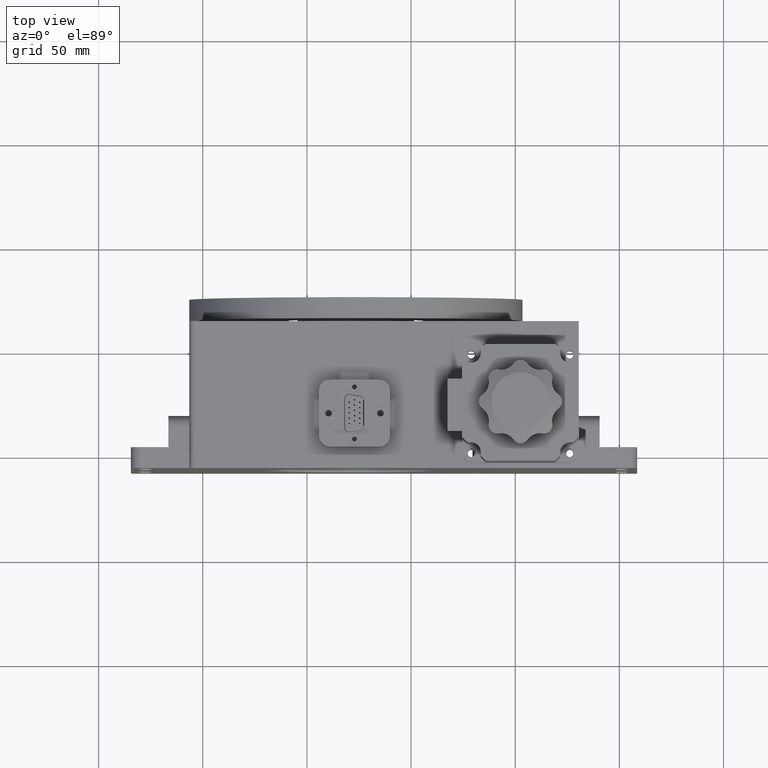
[diagram: clean part render]
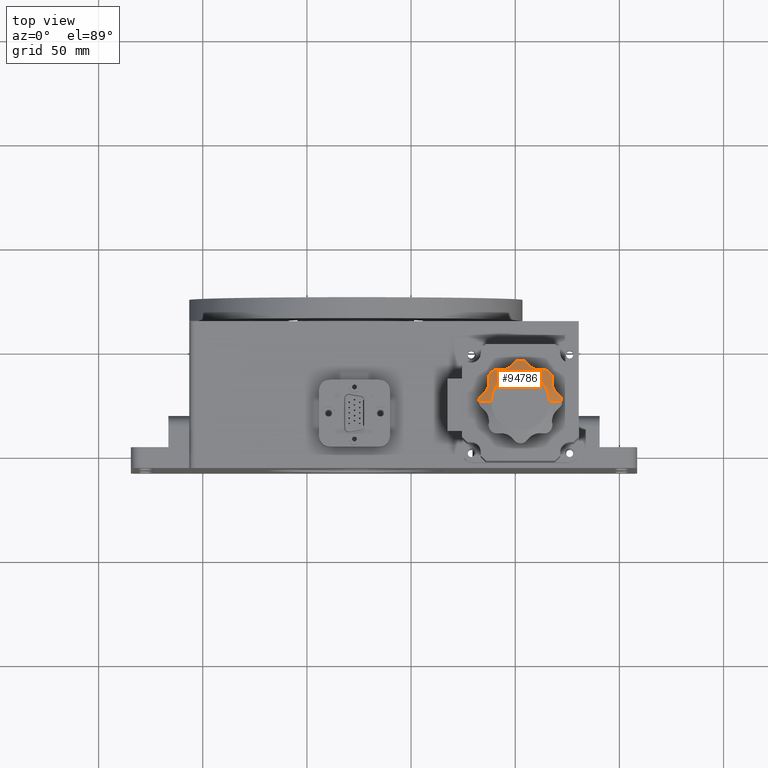
[diagram: same view with one face highlighted and labeled with its STEP entity id]
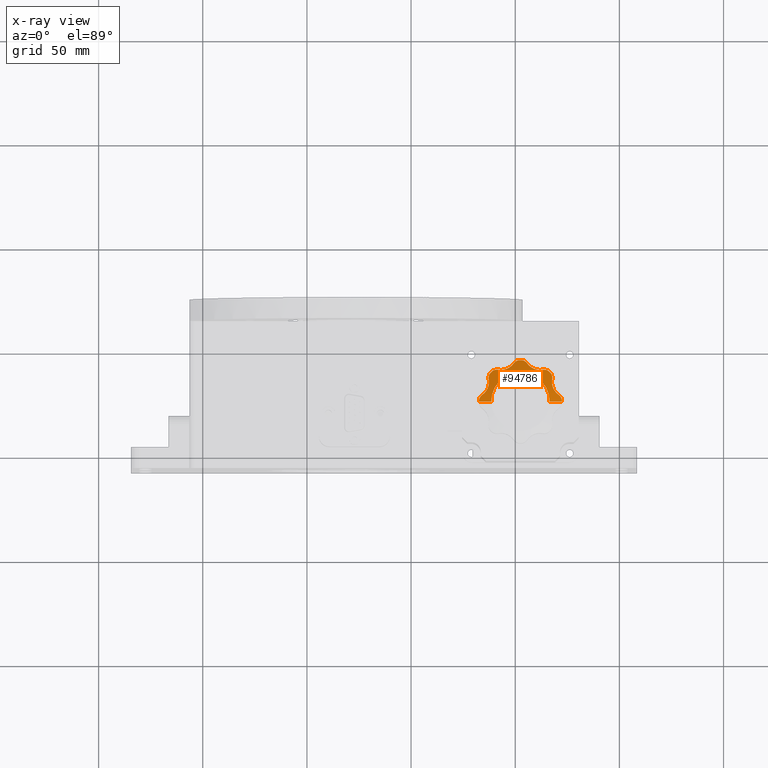
[diagram: x-ray of the same camera — body ghosted, the highlighted face saturated]
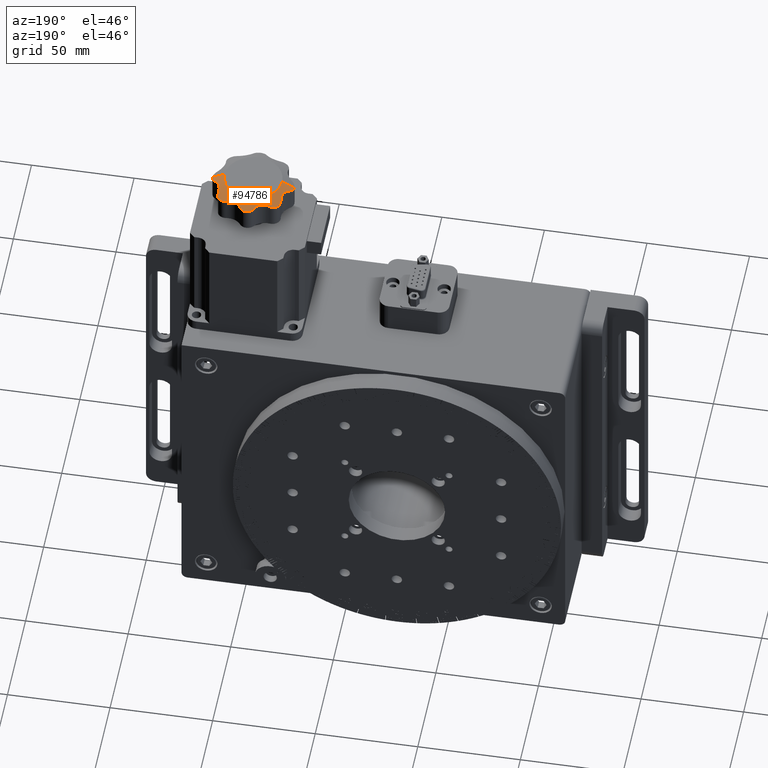
[diagram: same view with one face highlighted and labeled with its STEP entity id]
A machine part, top view. The second image highlights one B-rep face of the part: STEP entity #94786.
The next image is the same camera in x-ray: the body ghosted, the highlighted face saturated — about 0% of this face is hidden behind the body in this view.
A second angle (auxiliary view) of the same face is appended — the face is thin or edge-on in the first view.
In plain terms, the highlighted conical surface has half-angle 63 deg.
Its self-contained STEP definition (entity closure, byte-faithful):
#40 = EDGE_CURVE ( 'NONE', #5921, #12905, #22872, .T. ) ;
#714 = CARTESIAN_POINT ( 'NONE',  ( 244.2895339026112000, 38.22019407640754500, 158.1234121039777600 ) ) ;
#976 = EDGE_CURVE ( 'NONE', #85817, #81004, #88859, .T. ) ;
#1226 = LINE ( 'NONE', #74512, #20495 ) ;
#2388 = CARTESIAN_POINT ( 'NONE',  ( 262.4532974490604700, 38.13607644208972400, 157.7063472167102700 ) ) ;
#2733 = CARTESIAN_POINT ( 'NONE',  ( 256.6521355745475100, 40.25110680748105800, 157.8936131362179100 ) ) ;
#3042 = EDGE_CURVE ( 'NONE', #102464, #70332, #33786, .T. ) ;
#3214 = DIRECTION ( 'NONE',  ( -1.163031447553725900E-017, -1.979074067922844300E-017, -1.000000000000000000 ) ) ;
#3299 = CARTESIAN_POINT ( 'NONE',  ( 267.8353190381724900, 34.52552917857944000, 157.1610722483295300 ) ) ;
#3445 = EDGE_LOOP ( 'NONE', ( #23506, #17293, #21090, #42168, #74228, #86904, #52827, #32618, #105935, #5243, #28139, #44006, #78023, #72346, #22389, #43149, #6727, #10941, #90862, #21762, #10552, #42713 ) ) ;
#3989 = CARTESIAN_POINT ( 'NONE',  ( 272.2155535825086200, 24.49970920865667900, 156.8593759186635200 ) ) ;
#4061 = CARTESIAN_POINT ( 'NONE',  ( 236.4915562920233200, 28.85943980494048600, 158.2479042270338100 ) ) ;
#4962 = CARTESIAN_POINT ( 'NONE',  ( 267.9254955901665200, 30.28906229173460900, 158.2416332507994800 ) ) ;
#5053 = CIRCLE ( 'NONE', #29859, 19.88783151651546500 ) ;
#5243 = ORIENTED_EDGE ( 'NONE', *, *, #104392, .T. ) ;
#5921 = VERTEX_POINT ( 'NONE', #51972 ) ;
#5932 = CARTESIAN_POINT ( 'NONE',  ( 264.7138090749869000, 38.21806130307884100, 156.9914101614186300 ) ) ;
#6667 = EDGE_CURVE ( 'NONE', #12905, #97980, #33289, .T. ) ;
#6727 = ORIENTED_EDGE ( 'NONE', *, *, #61678, .T. ) ;
#6898 = CARTESIAN_POINT ( 'NONE',  ( 239.1980096866399800, 37.78454923670585000, 156.8000000000000100 ) ) ;
#7636 = CARTESIAN_POINT ( 'NONE',  ( 237.2066009731744000, 33.84962121827257400, 157.3795775005561900 ) ) ;
#7739 = EDGE_CURVE ( 'NONE', #15286, #102464, #39404, .T. ) ;
#8136 = EDGE_CURVE ( 'NONE', #98801, #48284, #99939, .T. ) ;
#8196 = CARTESIAN_POINT ( 'NONE',  ( 250.3756728672116800, 42.39726155890811300, 156.9914101639428700 ) ) ;
#8627 = B_SPLINE_CURVE_WITH_KNOTS ( 'NONE', 3,
 ( #29676, #96295, #104589, #55234, #5932, #63556, #14178, #71799, #22500, #80095 ),
 .UNSPECIFIED., .F., .F.,
 ( 4, 2, 2, 2, 4 ),
 ( 1.845941825669782200E-006, 0.0007127976189506407800, 0.001423749296075611900, 0.002134700973200582800, 0.002845652650325554000 ),
 .UNSPECIFIED. ) ;
#8871 = EDGE_CURVE ( 'NONE', #15286, #60846, #20980, .T. ) ;
#8956 = CARTESIAN_POINT ( 'NONE',  ( 243.2376291435348600, 38.13437783158880000, 157.8936132756212500 ) ) ;
#9814 = AXIS2_PLACEMENT_3D ( 'NONE', #81852, #32481, #90139 ) ;
#10120 = DIRECTION ( 'NONE',  ( 1.163031447553725900E-017, 1.979074067922844300E-017, 1.000000000000000000 ) ) ;
#10455 = CARTESIAN_POINT ( 'NONE',  ( 267.6419160565790200, 32.34121878844457100, 157.8681554785693800 ) ) ;
#10552 = ORIENTED_EDGE ( 'NONE', *, *, #6667, .T. ) ;
#10605 = CARTESIAN_POINT ( 'NONE',  ( 237.2742689622841100, 35.16590967332485500, 157.0033968980166900 ) ) ;
#10613 = CARTESIAN_POINT ( 'NONE',  ( 260.7157047989858300, 38.21937809799154500, 158.1225106314465400 ) ) ;
#10941 = ORIENTED_EDGE ( 'NONE', *, *, #976, .T. ) ;
#10962 = CARTESIAN_POINT ( 'NONE',  ( 255.9698768873821600, 41.01875098533089700, 157.5844689233043100 ) ) ;
#11558 = CARTESIAN_POINT ( 'NONE',  ( 267.8318424052072300, 34.06864707441517500, 157.2997279871319700 ) ) ;
#11949 = CARTESIAN_POINT ( 'NONE',  ( 237.3639235579104500, 32.95329744906084100, 157.7063472167102700 ) ) ;
#12249 = CARTESIAN_POINT ( 'NONE',  ( 272.3601825759157600, 24.04832746820617100, 156.8000000000000100 ) ) ;
#12305 = CARTESIAN_POINT ( 'NONE',  ( 236.1338441644809600, 28.24613468142378600, 158.1782248456928800 ) ) ;
#12877 = CARTESIAN_POINT ( 'NONE',  ( 270.7968704026918700, 26.27481088816412900, 157.4624876279491400 ) ) ;
#12905 = VERTEX_POINT ( 'NONE', #40096 ) ;
#13225 = CARTESIAN_POINT ( 'NONE',  ( 267.7302792191276200, 31.16214534001813200, 158.1301160192735400 ) ) ;
#14178 = CARTESIAN_POINT ( 'NONE',  ( 264.0266556550420800, 38.31449387680400800, 157.1674099899104500 ) ) ;
#14373 = AXIS2_PLACEMENT_3D ( 'NONE', #19429, #71877, #96739 ) ;
#15286 = VERTEX_POINT ( 'NONE', #71093 ) ;
#15306 = CARTESIAN_POINT ( 'NONE',  ( 255.1939272746092200, 41.99348869398897200, 157.1610719225173200 ) ) ;
#16456 = CARTESIAN_POINT ( 'NONE',  ( 249.8215938939477800, 41.97955883692399900, 157.1674099949589400 ) ) ;
#16858 = CARTESIAN_POINT ( 'NONE',  ( 247.5476549759786200, 39.57110591280401500, 158.1225106727056300 ) ) ;
#17222 = CARTESIAN_POINT ( 'NONE',  ( 242.2123927498955400, 38.19475443748550700, 157.5844690265438100 ) ) ;
#17293 = ORIENTED_EDGE ( 'NONE', *, *, #7739, .T. ) ;
#18831 = VERTEX_POINT ( 'NONE', #46037 ) ;
#18854 = EDGE_CURVE ( 'NONE', #48284, #26386, #49368, .T. ) ;
#18913 = CARTESIAN_POINT ( 'NONE',  ( 237.1969899873211600, 34.65284822802367200, 157.1331138828683700 ) ) ;
#18917 = CARTESIAN_POINT ( 'NONE',  ( 259.6807303797406800, 38.45506756187333500, 158.2519293113118700 ) ) ;
#19429 = CARTESIAN_POINT ( 'NONE',  ( 252.4999999999999400, 22.99999999999997900, 156.8000000000000100 ) ) ;
#19836 = CARTESIAN_POINT ( 'NONE',  ( 267.6782867069438200, 35.44651678098868100, 156.9340889378584300 ) ) ;
#20495 = VECTOR ( 'NONE', #83171, 1000.000000000000100 ) ;
#20496 = CARTESIAN_POINT ( 'NONE',  ( 272.0159357040424800, 24.92163010490064700, 156.9420244716242200 ) ) ;
#20568 = CARTESIAN_POINT ( 'NONE',  ( 235.4879669397834300, 27.40749196638294500, 157.9806272532480600 ) ) ;
#20980 = CIRCLE ( 'NONE', #61671, 13.99999999999998400 ) ;
#21090 = ORIENTED_EDGE ( 'NONE', *, *, #3042, .T. ) ;
#21508 = CARTESIAN_POINT ( 'NONE',  ( 267.6419160565790200, 32.04980657354980200, 157.9461143652519000 ) ) ;
#21580 = CARTESIAN_POINT ( 'NONE',  ( 237.1862915010153800, 34.31370849898491600, 157.2321513908461800 ) ) ;
#21762 = ORIENTED_EDGE ( 'NONE', *, *, #40, .T. ) ;
#21814 = AXIS2_PLACEMENT_3D ( 'NONE', #46388, #103979, #54624 ) ;
#22389 = ORIENTED_EDGE ( 'NONE', *, *, #76869, .T. ) ;
#22500 = CARTESIAN_POINT ( 'NONE',  ( 263.3449571646624500, 38.29258039298554200, 157.3812778587599400 ) ) ;
#22872 = B_SPLINE_CURVE_WITH_KNOTS ( 'NONE', 3,
 ( #26368, #53624, #54700, #44676, #76710, #87531 ),
 .UNSPECIFIED., .F., .F.,
 ( 4, 2, 4 ),
 ( 2.561101794015369700E-007, 0.001425904833248824900, 0.002851553556318248100 ),
 .UNSPECIFIED. ) ;
#23506 = ORIENTED_EDGE ( 'NONE', *, *, #8871, .F. ) ;
#23647 = CARTESIAN_POINT ( 'NONE',  ( 267.6419160565790200, 32.77534877471966700, 157.7520165911938600 ) ) ;
#23658 = CARTESIAN_POINT ( 'NONE',  ( 254.0111105713556000, 42.73450244827623100, 156.8515187176439600 ) ) ;
#24001 = CARTESIAN_POINT ( 'NONE',  ( 267.6419160565790200, 32.34121878844457100, 157.8681554785693800 ) ) ;
#24265 = B_SPLINE_CURVE_WITH_KNOTS ( 'NONE', 3,
 ( #69578, #11949, #28505, #86153, #36801, #94415, #45096, #102671, #53343, #4061, #61617, #12305, #69923, #20568, #78201, #28843, #86530, #37149 ),
 .UNSPECIFIED., .F., .F.,
 ( 4, 2, 2, 2, 2, 2, 2, 2, 4 ),
 ( 2.131679597206393300E-007, 0.002139037759767641000, 0.003208450055671597000, 0.004277862351575552900, 0.004812568499527515400, 0.005347274647479477100, 0.006416686943383443900, 0.007486099239287411500, 0.008555511535191379100 ),
 .UNSPECIFIED. ) ;
#24721 = B_SPLINE_CURVE_WITH_KNOTS ( 'NONE', 3,
 ( #12249, #101541, #3989, #20496, #78139, #28781, #86464, #37089, #94707, #45386 ),
 .UNSPECIFIED., .F., .F.,
 ( 4, 2, 2, 2, 4 ),
 ( 1.845941825692407700E-006, 0.0007127976259201239300, 0.001423749310014555500, 0.002134700994108986800, 0.002845652678203418500 ),
 .UNSPECIFIED. ) ;
#24806 = CARTESIAN_POINT ( 'NONE',  ( 249.3550554229111600, 41.48203000465142800, 157.3812778788824300 ) ) ;
#25211 = CARTESIAN_POINT ( 'NONE',  ( 246.6491607120238700, 39.00592656906529500, 158.2519292569572800 ) ) ;
#26207 = CARTESIAN_POINT ( 'NONE',  ( 240.9744708214210200, 38.33531903817277000, 157.1610722483295000 ) ) ;
#26368 = CARTESIAN_POINT ( 'NONE',  ( 234.2031295973080500, 26.27481088816406500, 157.4624876279491400 ) ) ;
#26386 = VERTEX_POINT ( 'NONE', #35011 ) ;
#27069 = CIRCLE ( 'NONE', #9814, 19.88783151651546500 ) ;
#27195 = CARTESIAN_POINT ( 'NONE',  ( 237.1862915010153800, 34.31370849898491600, 157.2321513908461800 ) ) ;
#27201 = CARTESIAN_POINT ( 'NONE',  ( 258.8447139801065800, 38.77245465182246400, 158.2715224530974800 ) ) ;
#27804 = VERTEX_POINT ( 'NONE', #59420 ) ;
#28103 = CARTESIAN_POINT ( 'NONE',  ( 267.2845492367055700, 36.30199031336035600, 156.8000000000000100 ) ) ;
#28139 = ORIENTED_EDGE ( 'NONE', *, *, #43385, .T. ) ;
#28333 = CARTESIAN_POINT ( 'NONE',  ( 272.3601825759157600, 24.04832746820617100, 156.8000000000000100 ) ) ;
#28505 = CARTESIAN_POINT ( 'NONE',  ( 237.3913583251216700, 32.26983697631887100, 157.9076970187258600 ) ) ;
#28781 = CARTESIAN_POINT ( 'NONE',  ( 271.6280055042728300, 25.50394357603630300, 157.1045522205684500 ) ) ;
#28843 = CARTESIAN_POINT ( 'NONE',  ( 234.7460957891600500, 26.68400874897204000, 157.6957180678859300 ) ) ;
#29419 = CARTESIAN_POINT ( 'NONE',  ( 269.3120699247531300, 27.64567900398778700, 158.0471494995148000 ) ) ;
#29676 = CARTESIAN_POINT ( 'NONE',  ( 265.8019903133599700, 37.78454923670596300, 156.8000000000000100 ) ) ;
#29859 = AXIS2_PLACEMENT_3D ( 'NONE', #59485, #10120, #67790 ) ;
#31604 = B_SPLINE_CURVE_WITH_KNOTS ( 'NONE', 3,
 ( #101009, #43436, #59956, #10605, #68263, #18913, #76508, #27195 ),
 .UNSPECIFIED., .F., .F.,
 ( 4, 2, 2, 4 ),
 ( 1.845941825613747800E-006, 0.001060830556685191200, 0.001590322864114988500, 0.002119815171544785900 ),
 .UNSPECIFIED. ) ;
#32387 = EDGE_CURVE ( 'NONE', #50943, #33016, #27069, .T. ) ;
#32481 = DIRECTION ( 'NONE',  ( 1.163031447553725900E-017, 1.979074067922844300E-017, 1.000000000000000000 ) ) ;
#32618 = ORIENTED_EDGE ( 'NONE', *, *, #18854, .T. ) ;
#32704 = CARTESIAN_POINT ( 'NONE',  ( 251.4516725317936900, 42.86018257591580000, 156.7999999999999800 ) ) ;
#33016 = VERTEX_POINT ( 'NONE', #82806 ) ;
#33169 = B_SPLINE_CURVE_WITH_KNOTS ( 'NONE', 3,
 ( #50670, #58957, #26207, #83833, #34472, #92123 ),
 .UNSPECIFIED., .F., .F.,
 ( 4, 2, 4 ),
 ( 2.128886231746074300E-007, 0.001425860909439218700, 0.002851508930255262600 ),
 .UNSPECIFIED. ) ;
#33289 = CIRCLE ( 'NONE', #63626, 19.88783151651546500 ) ;
#33464 = CARTESIAN_POINT ( 'NONE',  ( 245.8335808355228900, 38.63919999233129900, 158.2715224592073200 ) ) ;
#33786 = CIRCLE ( 'NONE', #14373, 19.88783151651546500 ) ;
#34472 = CARTESIAN_POINT ( 'NONE',  ( 239.6141157942927900, 38.02291690299071500, 156.8515186887566400 ) ) ;
#34641 = EDGE_CURVE ( 'NONE', #70332, #58776, #24721, .T. ) ;
#35011 = CARTESIAN_POINT ( 'NONE',  ( 265.8019903133599700, 37.78454923670596300, 156.8000000000000100 ) ) ;
#35322 = CARTESIAN_POINT ( 'NONE',  ( 237.1862915010153800, 34.08168198380101200, 157.3024017722140700 ) ) ;
#35480 = CARTESIAN_POINT ( 'NONE',  ( 258.3594398049402200, 39.00844370797664600, 158.2479042270338100 ) ) ;
#35912 = CARTESIAN_POINT ( 'NONE',  ( 253.5483274682062800, 42.86018257591580000, 156.8000000000000100 ) ) ;
#36411 = CARTESIAN_POINT ( 'NONE',  ( 272.3878315165154600, 22.99999999999995400, 156.8000000000000100 ) ) ;
#36665 = CARTESIAN_POINT ( 'NONE',  ( 270.3281509931109100, 26.60355895203692700, 157.6680647907425100 ) ) ;
#36801 = CARTESIAN_POINT ( 'NONE',  ( 237.2184003983645900, 30.86624647211548100, 158.1777368135645600 ) ) ;
#37089 = CARTESIAN_POINT ( 'NONE',  ( 271.1570728212484500, 25.99859869842761400, 157.3055536226904400 ) ) ;
#37149 = CARTESIAN_POINT ( 'NONE',  ( 234.2031295973080500, 26.27481088816406500, 157.4624876279491400 ) ) ;
#37726 = CARTESIAN_POINT ( 'NONE',  ( 268.7874064925749700, 28.37230715703527300, 158.1959166495826400 ) ) ;
#38044 = DIRECTION ( 'NONE',  ( 1.163031447553725900E-017, 1.979074067922844300E-017, 1.000000000000000000 ) ) ;
#39404 = LINE ( 'NONE', #95912, #58683 ) ;
#40096 = CARTESIAN_POINT ( 'NONE',  ( 232.6398174240841300, 24.04832746820621700, 156.8000000000000100 ) ) ;
#40169 = EDGE_CURVE ( 'NONE', #86532, #98801, #49673, .T. ) ;
#41773 = CARTESIAN_POINT ( 'NONE',  ( 245.3235710117191400, 38.46292887568893100, 158.2479042614597500 ) ) ;
#42168 = ORIENTED_EDGE ( 'NONE', *, *, #34641, .T. ) ;
#42713 = ORIENTED_EDGE ( 'NONE', *, *, #96714, .F. ) ;
#43149 = ORIENTED_EDGE ( 'NONE', *, *, #32387, .T. ) ;
#43340 = CARTESIAN_POINT ( 'NONE',  ( 252.4999999999999400, 22.99999999999997900, 159.8000000000000100 ) ) ;
#43385 = EDGE_CURVE ( 'NONE', #76786, #75565, #85414, .T. ) ;
#43436 = CARTESIAN_POINT ( 'NONE',  ( 237.5383515512844200, 35.99283737778643700, 156.8382766644687900 ) ) ;
#43479 = CARTESIAN_POINT ( 'NONE',  ( 267.2845492367055700, 36.30199031336035600, 156.8000000000000100 ) ) ;
#43785 = CARTESIAN_POINT ( 'NONE',  ( 257.7461346814237100, 39.36615583551905900, 158.1782248456929100 ) ) ;
#44006 = ORIENTED_EDGE ( 'NONE', *, *, #62226, .T. ) ;
#44676 = CARTESIAN_POINT ( 'NONE',  ( 232.9663142168585400, 24.93165305061452800, 156.9340889782051800 ) ) ;
#45096 = CARTESIAN_POINT ( 'NONE',  ( 236.9335400712124600, 29.84310483437169400, 158.2712213111371700 ) ) ;
#45386 = CARTESIAN_POINT ( 'NONE',  ( 270.7968704026918700, 26.27481088816412900, 157.4624876279491400 ) ) ;
#46031 = CARTESIAN_POINT ( 'NONE',  ( 268.3544517893238900, 29.15668406221546500, 158.2687201121260300 ) ) ;
#46037 = CARTESIAN_POINT ( 'NONE',  ( 249.2251891118359300, 41.29687040269196500, 157.4624876279491400 ) ) ;
#46388 = CARTESIAN_POINT ( 'NONE',  ( 252.4999999999999400, 22.99999999999997900, 156.8000000000000100 ) ) ;
#48284 = VERTEX_POINT ( 'NONE', #43479 ) ;
#48814 = CARTESIAN_POINT ( 'NONE',  ( 267.7534821223590600, 33.62220015011082100, 157.4624876279491200 ) ) ;
#49368 = CIRCLE ( 'NONE', #21814, 19.88783151651546500 ) ;
#49673 = B_SPLINE_CURVE_WITH_KNOTS ( 'NONE', 3,
 ( #24001, #23647, #98154, #48814 ),
 .UNSPECIFIED., .F., .F.,
 ( 4, 4 ),
 ( 0.007212503309002516600, 0.008555554693879358400 ),
 .UNSPECIFIED. ) ;
#49676 = CARTESIAN_POINT ( 'NONE',  ( 249.2251891118359300, 41.29687040269196500, 157.4624876279491400 ) ) ;
#50012 = CARTESIAN_POINT ( 'NONE',  ( 244.6369582939748000, 38.28219731838610300, 158.1782249368033000 ) ) ;
#50670 = CARTESIAN_POINT ( 'NONE',  ( 241.8777998498895800, 38.25348212235920900, 157.4624876279491400 ) ) ;
#50943 = VERTEX_POINT ( 'NONE', #6898 ) ;
#51518 = CARTESIAN_POINT ( 'NONE',  ( 263.1222001501103600, 38.25348212235938000, 157.4624876279491200 ) ) ;
#51541 = DIRECTION ( 'NONE',  ( -1.000000000000000000, 1.486905836551550700E-015, 0.0000000000000000000 ) ) ;
#51972 = CARTESIAN_POINT ( 'NONE',  ( 234.2031295973080500, 26.27481088816406500, 157.4624876279491400 ) ) ;
#52004 = CARTESIAN_POINT ( 'NONE',  ( 256.9074919663829100, 40.01203306021658800, 157.9806272532480900 ) ) ;
#52139 = FACE_OUTER_BOUND ( 'NONE', #3445, .T. ) ;
#52321 = EDGE_CURVE ( 'NONE', #27804, #18831, #90550, .T. ) ;
#52827 = ORIENTED_EDGE ( 'NONE', *, *, #8136, .T. ) ;
#53343 = CARTESIAN_POINT ( 'NONE',  ( 236.6521741729587200, 29.17972233872343700, 158.2667672483696600 ) ) ;
#53624 = CARTESIAN_POINT ( 'NONE',  ( 233.8320352971122400, 26.01453463288228100, 157.2997281778311800 ) ) ;
#54253 = CARTESIAN_POINT ( 'NONE',  ( 268.0144141422985100, 30.00150210530445000, 158.2620551456884400 ) ) ;
#54624 = DIRECTION ( 'NONE',  ( -1.000000000000000000, 1.395605930821559500E-015, 0.0000000000000000000 ) ) ;
#54700 = CARTESIAN_POINT ( 'NONE',  ( 233.5065113060109400, 25.69392727460927600, 157.1610719225173500 ) ) ;
#54746 = B_SPLINE_CURVE_WITH_KNOTS ( 'NONE', 3,
 ( #49676, #57947, #66240, #16858, #74513, #25211, #82836, #33464, #91106, #41773, #99364, #50012, #714, #58291, #8956, #66586, #17222, #74857 ),
 .UNSPECIFIED., .F., .F.,
 ( 4, 2, 2, 2, 2, 2, 2, 2, 4 ),
 ( 2.564491608128454500E-007, 0.002139081010340398800, 0.003208493290930192500, 0.004277905571519985200, 0.004812611711814843700, 0.005347317852109702100, 0.006416730132699484900, 0.007486142413289268600, 0.008555554693879049600 ),
 .UNSPECIFIED. ) ;
#54867 = DIRECTION ( 'NONE',  ( 0.8910065241883690100, -1.170628239925355600E-015, -0.4539904997395444700 ) ) ;
#55234 = CARTESIAN_POINT ( 'NONE',  ( 264.9410528081537000, 38.15864815293876700, 156.9420244698526400 ) ) ;
#56387 = CARTESIAN_POINT ( 'NONE',  ( 255.5145346328822000, 41.66796470288765200, 157.2997281778311800 ) ) ;
#56589 = CARTESIAN_POINT ( 'NONE',  ( 270.7968704026918700, 26.27481088816412900, 157.4624876279491400 ) ) ;
#57064 = VERTEX_POINT ( 'NONE', #51518 ) ;
#57544 = CARTESIAN_POINT ( 'NONE',  ( 250.5783698950992300, 42.51593570404262600, 156.9420244716242200 ) ) ;
#57545 = EDGE_CURVE ( 'NONE', #18831, #73175, #54746, .T. ) ;
#57947 = CARTESIAN_POINT ( 'NONE',  ( 248.8352221863461600, 40.74086692416698000, 157.7063469930234000 ) ) ;
#58291 = CARTESIAN_POINT ( 'NONE',  ( 243.5872436450108600, 38.14589139243839400, 157.9806272895484900 ) ) ;
#58683 = VECTOR ( 'NONE', #54867, 1000.000000000000100 ) ;
#58776 = VERTEX_POINT ( 'NONE', #56589 ) ;
#58957 = CARTESIAN_POINT ( 'NONE',  ( 241.4313529255852000, 38.33184240520762400, 157.2997279871320000 ) ) ;
#59420 = CARTESIAN_POINT ( 'NONE',  ( 251.4516725317936900, 42.86018257591580000, 156.7999999999999800 ) ) ;
#59485 = CARTESIAN_POINT ( 'NONE',  ( 252.4999999999999400, 22.99999999999997900, 156.8000000000000100 ) ) ;
#59956 = CARTESIAN_POINT ( 'NONE',  ( 237.4071583832806300, 35.66974006896804600, 156.8940759838539000 ) ) ;
#59963 = CARTESIAN_POINT ( 'NONE',  ( 261.7698369763185200, 38.10864167487841300, 157.9076970187258600 ) ) ;
#60312 = CARTESIAN_POINT ( 'NONE',  ( 256.1840087489719100, 40.75390421083992000, 157.6957180678858800 ) ) ;
#60846 = VERTEX_POINT ( 'NONE', #89730 ) ;
#61617 = CARTESIAN_POINT ( 'NONE',  ( 236.4059696899272800, 28.70324688186120500, 158.2338196571571100 ) ) ;
#61671 = AXIS2_PLACEMENT_3D ( 'NONE', #43340, #100904, #51541 ) ;
#61678 = EDGE_CURVE ( 'NONE', #33016, #85817, #31604, .T. ) ;
#62226 = EDGE_CURVE ( 'NONE', #75565, #27804, #5053, .T. ) ;
#62577 = CARTESIAN_POINT ( 'NONE',  ( 267.7834239956908400, 30.86938308759954500, 158.1756647833043400 ) ) ;
#63556 = CARTESIAN_POINT ( 'NONE',  ( 264.2549869360204900, 38.29609788310630600, 157.1045522164380400 ) ) ;
#63626 = AXIS2_PLACEMENT_3D ( 'NONE', #87415, #38044, #95630 ) ;
#63748 = CONICAL_SURFACE ( 'NONE', #83134, 13.99999999999998400, 1.099557428756430000 ) ;
#64669 = CARTESIAN_POINT ( 'NONE',  ( 255.7748108881640100, 41.29687040269193700, 157.4624876279491400 ) ) ;
#65829 = CARTESIAN_POINT ( 'NONE',  ( 249.9960564239636100, 42.12800550427292000, 157.1045522205684200 ) ) ;
#66240 = CARTESIAN_POINT ( 'NONE',  ( 248.3713421540838600, 40.23818802919777900, 157.9076968662358500 ) ) ;
#66586 = CARTESIAN_POINT ( 'NONE',  ( 242.5510819602775700, 38.15889358946785800, 157.6957182112122100 ) ) ;
#67790 = DIRECTION ( 'NONE',  ( -1.000000000000000000, 1.395605930821559500E-015, 0.0000000000000000000 ) ) ;
#68263 = CARTESIAN_POINT ( 'NONE',  ( 237.2407862417137200, 34.99380450088324300, 157.0444533669842400 ) ) ;
#68268 = CARTESIAN_POINT ( 'NONE',  ( 260.3662464721151100, 38.28159960163545600, 158.1777368135645400 ) ) ;
#68619 = CARTESIAN_POINT ( 'NONE',  ( 255.7748108881640100, 41.29687040269193700, 157.4624876279491400 ) ) ;
#69192 = CARTESIAN_POINT ( 'NONE',  ( 267.7534821223590600, 33.62220015011082100, 157.4624876279491200 ) ) ;
#69578 = CARTESIAN_POINT ( 'NONE',  ( 237.2465178776408300, 33.62220015011073600, 157.4624876279491200 ) ) ;
#69894 = CARTESIAN_POINT ( 'NONE',  ( 241.8777998498895800, 38.25348212235920900, 157.4624876279491400 ) ) ;
#69923 = CARTESIAN_POINT ( 'NONE',  ( 235.9320209486633600, 27.95662572260399500, 158.1234119966749200 ) ) ;
#70332 = VERTEX_POINT ( 'NONE', #28333 ) ;
#70842 = CARTESIAN_POINT ( 'NONE',  ( 267.6593156579953100, 31.75294113229227500, 158.0153070941807700 ) ) ;
#71093 = CARTESIAN_POINT ( 'NONE',  ( 266.4999999999999400, 22.99999999999995700, 159.8000000000000100 ) ) ;
#71353 = CARTESIAN_POINT ( 'NONE',  ( 232.6121684834844800, 23.00000000000000700, 156.8000000000000100 ) ) ;
#71799 = CARTESIAN_POINT ( 'NONE',  ( 263.5722132574891200, 38.31287218392944300, 157.3055536155510200 ) ) ;
#71877 = DIRECTION ( 'NONE',  ( 1.163031447553725900E-017, 1.979074067922844300E-017, 1.000000000000000000 ) ) ;
#72346 = ORIENTED_EDGE ( 'NONE', *, *, #57545, .T. ) ;
#72947 = CARTESIAN_POINT ( 'NONE',  ( 254.4316530506146100, 42.53368578314128000, 156.9340889782051800 ) ) ;
#73175 = VERTEX_POINT ( 'NONE', #69894 ) ;
#74105 = CARTESIAN_POINT ( 'NONE',  ( 249.5014013015723200, 41.65707282124856900, 157.3055536226903800 ) ) ;
#74228 = ORIENTED_EDGE ( 'NONE', *, *, #82021, .T. ) ;
#74512 = CARTESIAN_POINT ( 'NONE',  ( 238.4999999999999700, 23.00000000000000000, 159.8000000000000100 ) ) ;
#74513 = CARTESIAN_POINT ( 'NONE',  ( 247.2565540031625600, 39.36799925479999700, 158.1777367299794400 ) ) ;
#74857 = CARTESIAN_POINT ( 'NONE',  ( 241.8777998498895800, 38.25348212235920900, 157.4624876279491400 ) ) ;
#75565 = VERTEX_POINT ( 'NONE', #35912 ) ;
#75934 = B_SPLINE_CURVE_WITH_KNOTS ( 'NONE', 3,
 ( #101016, #2388, #59963, #10613, #68268, #18917, #76515, #27201, #84840, #35480, #93106, #43785, #101361, #52004, #2733, #60312, #10962, #68619 ),
 .UNSPECIFIED., .F., .F.,
 ( 4, 2, 2, 2, 2, 2, 2, 2, 4 ),
 ( 2.131679597202617400E-007, 0.002139037759767271500, 0.003208450055671125500, 0.004277862351574980400, 0.004812568499526984600, 0.005347274647478987900, 0.006416686943382995400, 0.007486099239287002900, 0.008555511535191009600 ),
 .UNSPECIFIED. ) ;
#76508 = CARTESIAN_POINT ( 'NONE',  ( 237.1862915010153800, 34.48296988118301700, 157.1809043312553600 ) ) ;
#76515 = CARTESIAN_POINT ( 'NONE',  ( 259.3431048343715000, 38.56645992878765800, 158.2712213111371100 ) ) ;
#76710 = CARTESIAN_POINT ( 'NONE',  ( 232.7654975517237100, 24.51111057135558400, 156.8515187176439600 ) ) ;
#76786 = VERTEX_POINT ( 'NONE', #105832 ) ;
#76869 = EDGE_CURVE ( 'NONE', #73175, #50943, #33169, .T. ) ;
#77449 = CARTESIAN_POINT ( 'NONE',  ( 267.5229169029902900, 35.88588420570753400, 156.8515186887566700 ) ) ;
#78023 = ORIENTED_EDGE ( 'NONE', *, *, #52321, .T. ) ;
#78139 = CARTESIAN_POINT ( 'NONE',  ( 271.8972615589080400, 25.12432713278823500, 156.9914101639429000 ) ) ;
#78201 = CARTESIAN_POINT ( 'NONE',  ( 235.2488931925189500, 27.15213557454763900, 157.8936131362179400 ) ) ;
#78763 = CARTESIAN_POINT ( 'NONE',  ( 269.8976088687136900, 26.98524406972230900, 157.8431600133843300 ) ) ;
#79116 = CARTESIAN_POINT ( 'NONE',  ( 267.6419160565790200, 32.34121878844457100, 157.8681554785693800 ) ) ;
#80095 = CARTESIAN_POINT ( 'NONE',  ( 263.1222001501103600, 38.25348212235938000, 157.4624876279491200 ) ) ;
#81004 = VERTEX_POINT ( 'NONE', #91725 ) ;
#81217 = EDGE_CURVE ( 'NONE', #26386, #57064, #8627, .T. ) ;
#81255 = CARTESIAN_POINT ( 'NONE',  ( 253.5483274682062800, 42.86018257591580000, 156.8000000000000100 ) ) ;
#81852 = CARTESIAN_POINT ( 'NONE',  ( 252.4999999999999400, 22.99999999999997900, 156.8000000000000100 ) ) ;
#81999 = CARTESIAN_POINT ( 'NONE',  ( 237.1862915010153800, 34.31370849898491600, 157.2321513908461800 ) ) ;
#82021 = EDGE_CURVE ( 'NONE', #58776, #86532, #83894, .T. ) ;
#82415 = CARTESIAN_POINT ( 'NONE',  ( 249.2251891118359300, 41.29687040269196500, 157.4624876279491400 ) ) ;
#82806 = CARTESIAN_POINT ( 'NONE',  ( 237.7154507632943700, 36.30199031336027100, 156.8000000000000100 ) ) ;
#82836 = CARTESIAN_POINT ( 'NONE',  ( 246.3316570384803600, 38.84595546684312200, 158.2712212983298600 ) ) ;
#83134 = AXIS2_PLACEMENT_3D ( 'NONE', #101848, #3214, #102199 ) ;
#83171 = DIRECTION ( 'NONE',  ( -0.8910065241883690100, 1.261775452209667600E-015, -0.4539904997395444700 ) ) ;
#83833 = CARTESIAN_POINT ( 'NONE',  ( 240.0534832190116400, 38.17828670694427700, 156.9340889378584300 ) ) ;
#83894 = B_SPLINE_CURVE_WITH_KNOTS ( 'NONE', 3,
 ( #12877, #36665, #78763, #29419, #87101, #37726, #95319, #46031, #103617, #54253, #4962, #62577, #13225, #70842, #21508, #79116 ),
 .UNSPECIFIED., .F., .F.,
 ( 4, 2, 2, 2, 2, 2, 2, 4 ),
 ( 2.564491608131124700E-007, 0.001803318164121232800, 0.002704849021601446800, 0.003606379879081661000, 0.004507910736561874400, 0.005409441594042088200, 0.006310972451522302800, 0.007212503309002516600 ),
 .UNSPECIFIED. ) ;
#84840 = CARTESIAN_POINT ( 'NONE',  ( 258.6797223387232500, 38.84782582704131200, 158.2667672483696300 ) ) ;
#85414 = B_SPLINE_CURVE_WITH_KNOTS ( 'NONE', 3,
 ( #64669, #56387, #15306, #72947, #23658, #81255 ),
 .UNSPECIFIED., .F., .F.,
 ( 4, 2, 4 ),
 ( 2.561101793687436700E-007, 0.001425904833248700000, 0.002851553556318031300 ),
 .UNSPECIFIED. ) ;
#85817 = VERTEX_POINT ( 'NONE', #81999 ) ;
#86153 = CARTESIAN_POINT ( 'NONE',  ( 237.2806219020085900, 31.21570479898604200, 158.1225106314465700 ) ) ;
#86464 = CARTESIAN_POINT ( 'NONE',  ( 271.4795588369239000, 25.67840610605217200, 157.1674099949589200 ) ) ;
#86530 = CARTESIAN_POINT ( 'NONE',  ( 234.4812490146690000, 26.46987688738229800, 157.5844689233043100 ) ) ;
#86532 = VERTEX_POINT ( 'NONE', #10455 ) ;
#86904 = ORIENTED_EDGE ( 'NONE', *, *, #40169, .T. ) ;
#87101 = CARTESIAN_POINT ( 'NONE',  ( 269.1262320310050300, 27.88224356309232400, 158.1053658163797000 ) ) ;
#87415 = CARTESIAN_POINT ( 'NONE',  ( 252.4999999999999400, 22.99999999999997900, 156.8000000000000100 ) ) ;
#87531 = CARTESIAN_POINT ( 'NONE',  ( 232.6398174240841300, 24.04832746820621700, 156.8000000000000100 ) ) ;
#88859 = B_SPLINE_CURVE_WITH_KNOTS ( 'NONE', 3,
 ( #21580, #35322, #7636, #104766 ),
 .UNSPECIFIED., .F., .F.,
 ( 4, 4 ),
 ( 0.002119815171544785900, 0.002845652650325447300 ),
 .UNSPECIFIED. ) ;
#89730 = CARTESIAN_POINT ( 'NONE',  ( 238.4999999999999700, 23.00000000000000000, 159.8000000000000100 ) ) ;
#90139 = DIRECTION ( 'NONE',  ( -1.000000000000000000, 1.395605930821559500E-015, 0.0000000000000000000 ) ) ;
#90550 = B_SPLINE_CURVE_WITH_KNOTS ( 'NONE', 3,
 ( #32704, #105818, #106877, #57544, #8196, #65829, #16456, #74105, #24806, #82415 ),
 .UNSPECIFIED., .F., .F.,
 ( 4, 2, 2, 2, 4 ),
 ( 1.845941825689846500E-006, 0.0007127976259200723200, 0.001423749310014454800, 0.002134700994108837600, 0.002845652678203219900 ),
 .UNSPECIFIED. ) ;
#90567 = CARTESIAN_POINT ( 'NONE',  ( 267.7534821223590600, 33.62220015011082100, 157.4624876279491200 ) ) ;
#90862 = ORIENTED_EDGE ( 'NONE', *, *, #94366, .T. ) ;
#91106 = CARTESIAN_POINT ( 'NONE',  ( 245.6636187473103000, 38.57582878604117100, 158.2667672571537900 ) ) ;
#91725 = CARTESIAN_POINT ( 'NONE',  ( 237.2465178776408300, 33.62220015011073600, 157.4624876279491200 ) ) ;
#92123 = CARTESIAN_POINT ( 'NONE',  ( 239.1980096866399800, 37.78454923670585000, 156.8000000000000100 ) ) ;
#93106 = CARTESIAN_POINT ( 'NONE',  ( 258.2032468818610500, 39.09403031007269600, 158.2338196571571400 ) ) ;
#94366 = EDGE_CURVE ( 'NONE', #81004, #5921, #24265, .T. ) ;
#94415 = CARTESIAN_POINT ( 'NONE',  ( 237.0449324381267800, 30.18073037974085800, 158.2519293113118700 ) ) ;
#94707 = CARTESIAN_POINT ( 'NONE',  ( 270.9820300046513400, 26.14494457708879700, 157.3812778788824900 ) ) ;
#94786 = ADVANCED_FACE ( 'NONE', ( #52139 ), #63748, .T. ) ;
#95319 = CARTESIAN_POINT ( 'NONE',  ( 268.6329812239820900, 28.62713173099842100, 158.2288222905057800 ) ) ;
#95630 = DIRECTION ( 'NONE',  ( -1.000000000000000000, 1.395605930821559500E-015, 0.0000000000000000000 ) ) ;
#95912 = CARTESIAN_POINT ( 'NONE',  ( 266.4999999999999400, 22.99999999999996100, 159.8000000000000100 ) ) ;
#96295 = CARTESIAN_POINT ( 'NONE',  ( 265.5944398022851900, 37.90344518668395300, 156.8256971238458300 ) ) ;
#96714 = EDGE_CURVE ( 'NONE', #60846, #97980, #1226, .T. ) ;
#96739 = DIRECTION ( 'NONE',  ( -1.000000000000000000, 1.395605930821559500E-015, 0.0000000000000000000 ) ) ;
#97980 = VERTEX_POINT ( 'NONE', #71353 ) ;
#98154 = CARTESIAN_POINT ( 'NONE',  ( 267.6797273133559500, 33.20199227904079500, 157.6156813861331900 ) ) ;
#98801 = VERTEX_POINT ( 'NONE', #90567 ) ;
#99364 = CARTESIAN_POINT ( 'NONE',  ( 245.1526071381896100, 38.41300267155310200, 158.2338197077304800 ) ) ;
#99939 = B_SPLINE_CURVE_WITH_KNOTS ( 'NONE', 3,
 ( #69192, #11558, #3299, #19836, #77449, #28103 ),
 .UNSPECIFIED., .F., .F.,
 ( 4, 2, 4 ),
 ( 2.128886231478264400E-007, 0.001425860909439151300, 0.002851508930255155000 ),
 .UNSPECIFIED. ) ;
#100904 = DIRECTION ( 'NONE',  ( 1.163031447553725900E-017, 1.979074067922844300E-017, 1.000000000000000000 ) ) ;
#101009 = CARTESIAN_POINT ( 'NONE',  ( 237.7154507632943700, 36.30199031336027100, 156.8000000000000100 ) ) ;
#101016 = CARTESIAN_POINT ( 'NONE',  ( 263.1222001501103600, 38.25348212235938000, 157.4624876279491200 ) ) ;
#101361 = CARTESIAN_POINT ( 'NONE',  ( 257.4566257226038600, 39.56797905133658600, 158.1234119966749700 ) ) ;
#101541 = CARTESIAN_POINT ( 'NONE',  ( 272.2974943339667700, 24.27915997677379800, 156.8256971240977600 ) ) ;
#101848 = CARTESIAN_POINT ( 'NONE',  ( 252.4999999999999400, 22.99999999999997900, 159.8000000000000100 ) ) ;
#102199 = DIRECTION ( 'NONE',  ( -1.000000000000000000, 1.486905836551550700E-015, 0.0000000000000000000 ) ) ;
#102464 = VERTEX_POINT ( 'NONE', #36411 ) ;
#102671 = CARTESIAN_POINT ( 'NONE',  ( 236.7275453481775900, 29.34471398010680700, 158.2715224530975300 ) ) ;
#103617 = CARTESIAN_POINT ( 'NONE',  ( 268.2301810557759200, 29.43182977399424500, 158.2757041354543000 ) ) ;
#103979 = DIRECTION ( 'NONE',  ( 1.163031447553725900E-017, 1.979074067922844300E-017, 1.000000000000000000 ) ) ;
#104392 = EDGE_CURVE ( 'NONE', #57064, #76786, #75934, .T. ) ;
#104589 = CARTESIAN_POINT ( 'NONE',  ( 265.3805470859817300, 38.00145618236290800, 156.8593759180047000 ) ) ;
#104766 = CARTESIAN_POINT ( 'NONE',  ( 237.2465178776408300, 33.62220015011073600, 157.4624876279491200 ) ) ;
#105818 = CARTESIAN_POINT ( 'NONE',  ( 251.2208400232260900, 42.79749433396680300, 156.8256971240977300 ) ) ;
#105832 = CARTESIAN_POINT ( 'NONE',  ( 255.7748108881640100, 41.29687040269193700, 157.4624876279491400 ) ) ;
#105935 = ORIENTED_EDGE ( 'NONE', *, *, #81217, .T. ) ;
#106877 = CARTESIAN_POINT ( 'NONE',  ( 251.0002907913432200, 42.71555358250861900, 156.8593759186634900 ) ) ;